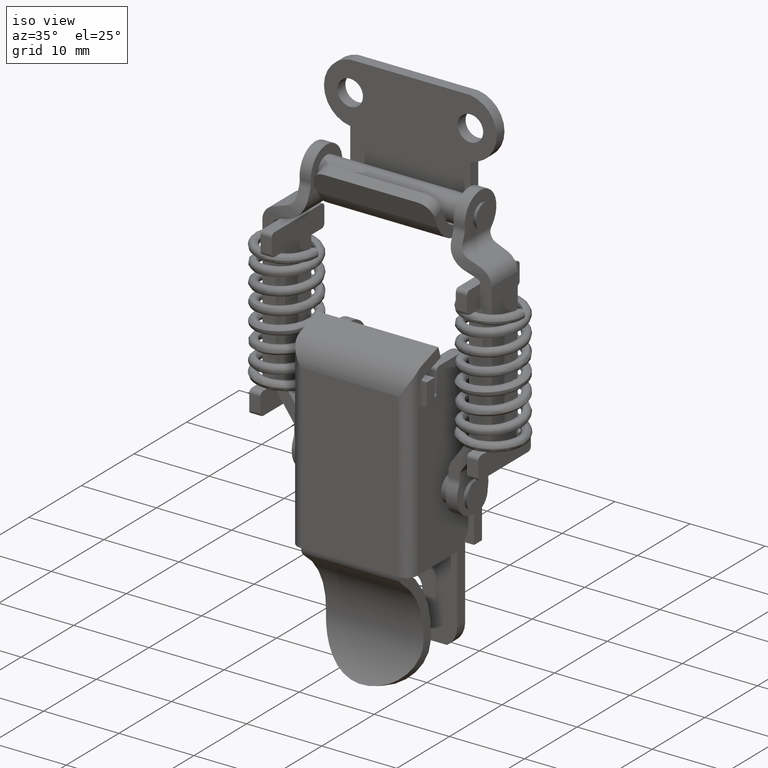
[diagram: clean part render]
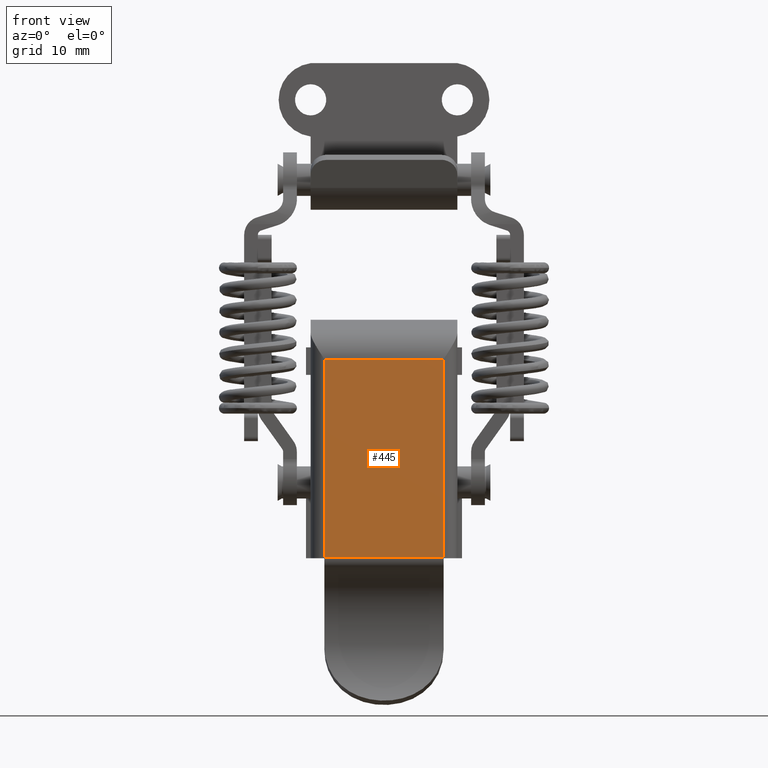
[diagram: tour spotlight — one face highlighted and labeled with its STEP entity id]
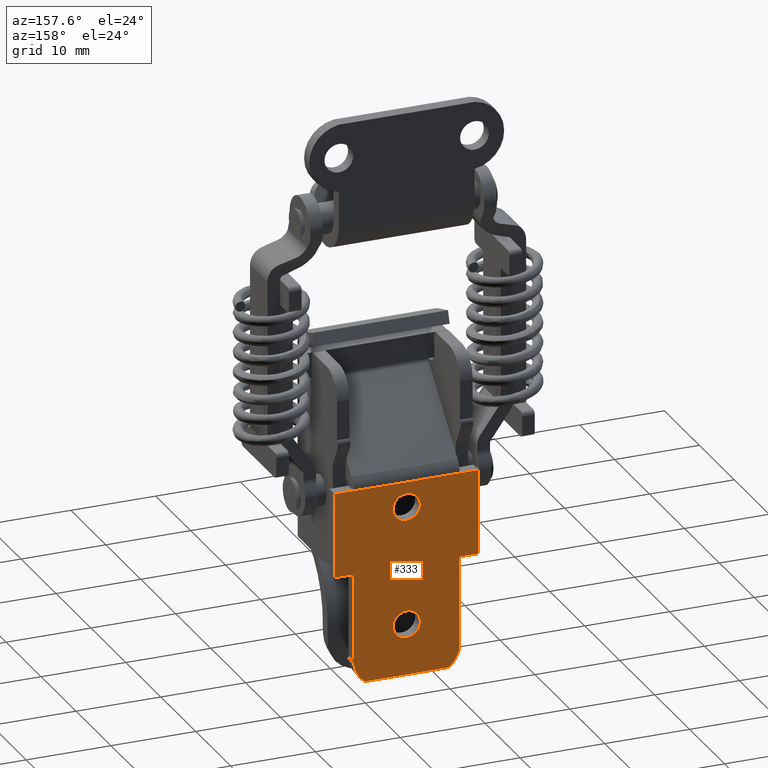
[diagram: tour spotlight — one face highlighted and labeled with its STEP entity id]
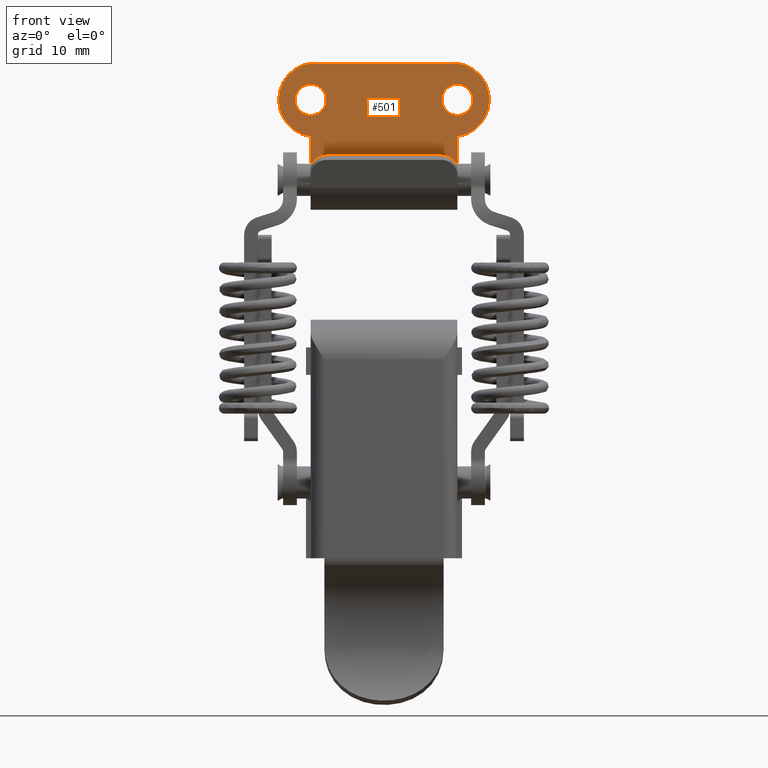
[diagram: tour spotlight — one face highlighted and labeled with its STEP entity id]
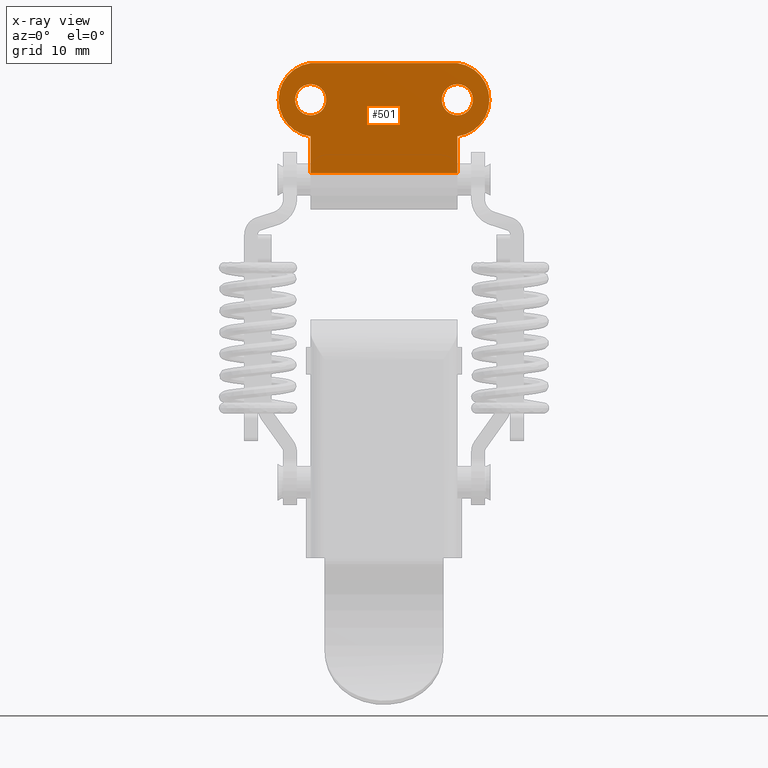
[diagram: x-ray of the same camera — body ghosted, this tour face saturated]
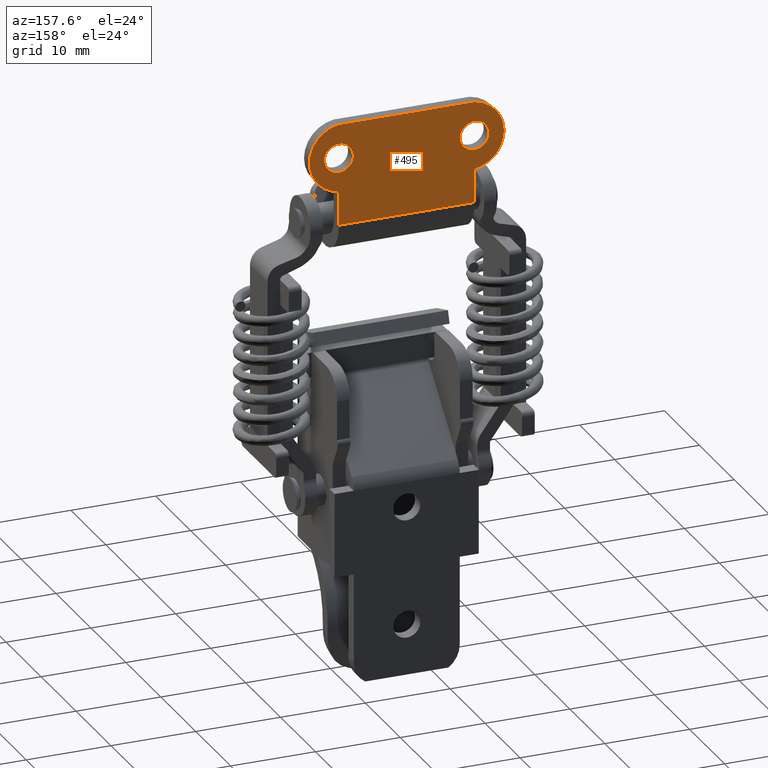
[diagram: tour spotlight — one face highlighted and labeled with its STEP entity id]
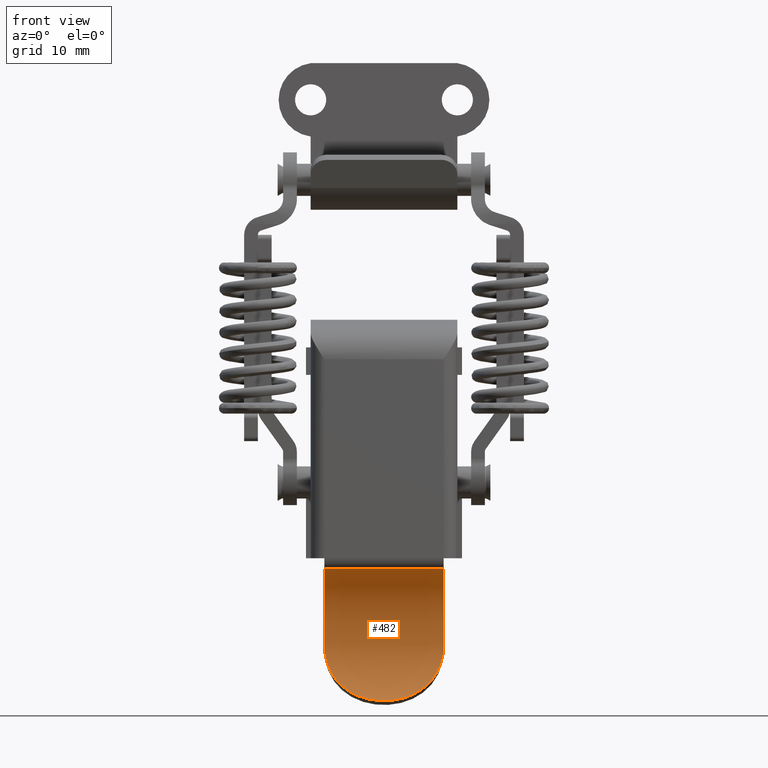
[diagram: tour spotlight — one face highlighted and labeled with its STEP entity id]
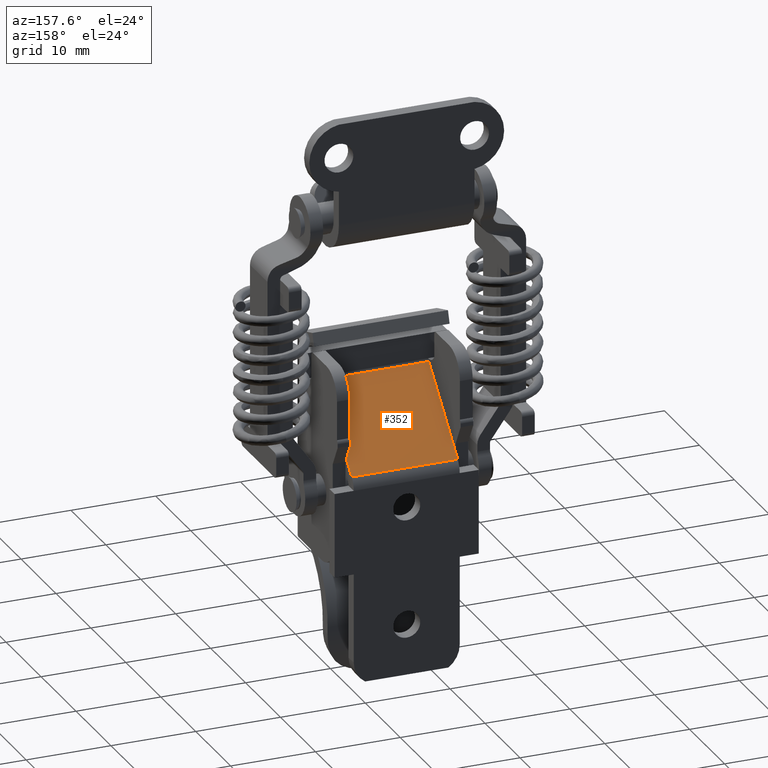
[diagram: tour spotlight — one face highlighted and labeled with its STEP entity id]
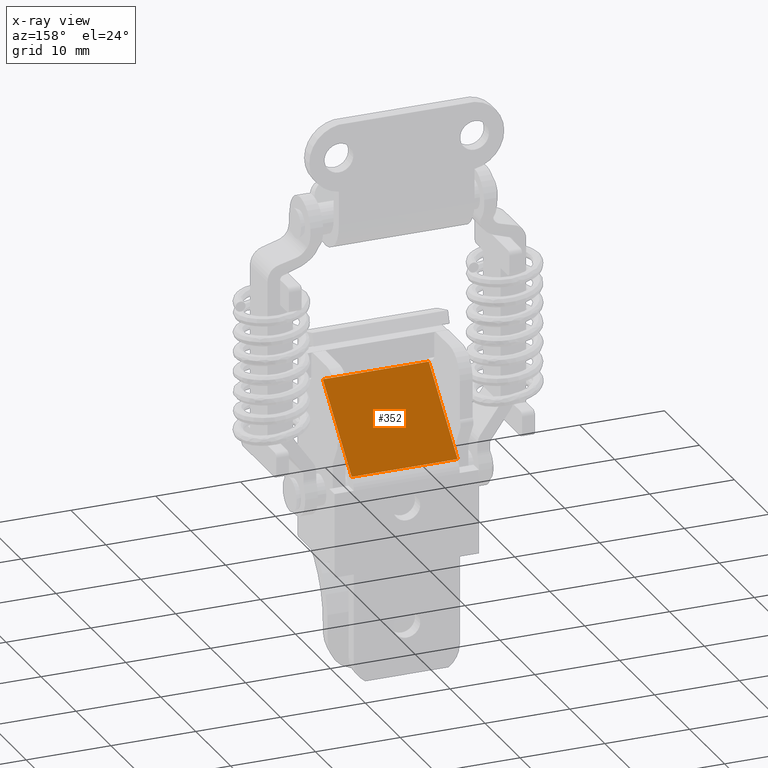
[diagram: x-ray of the same camera — body ghosted, this tour face saturated]
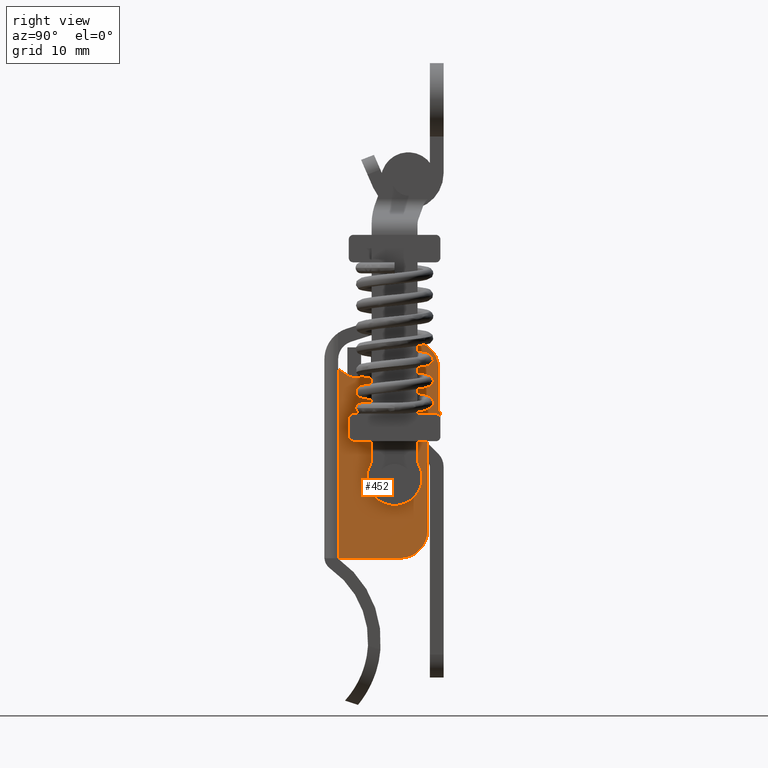
[diagram: tour spotlight — one face highlighted and labeled with its STEP entity id]
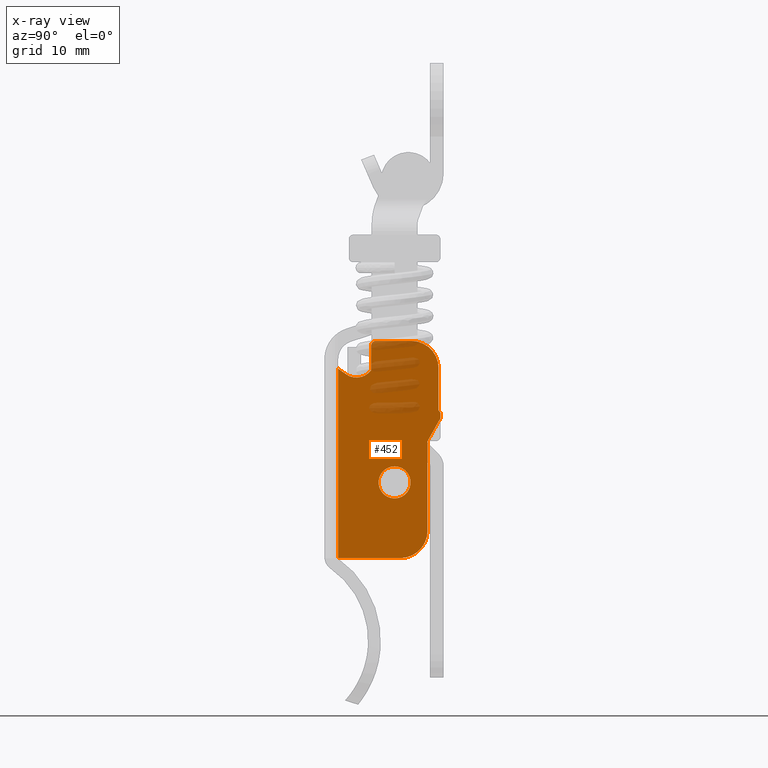
[diagram: x-ray of the same camera — body ghosted, this tour face saturated]
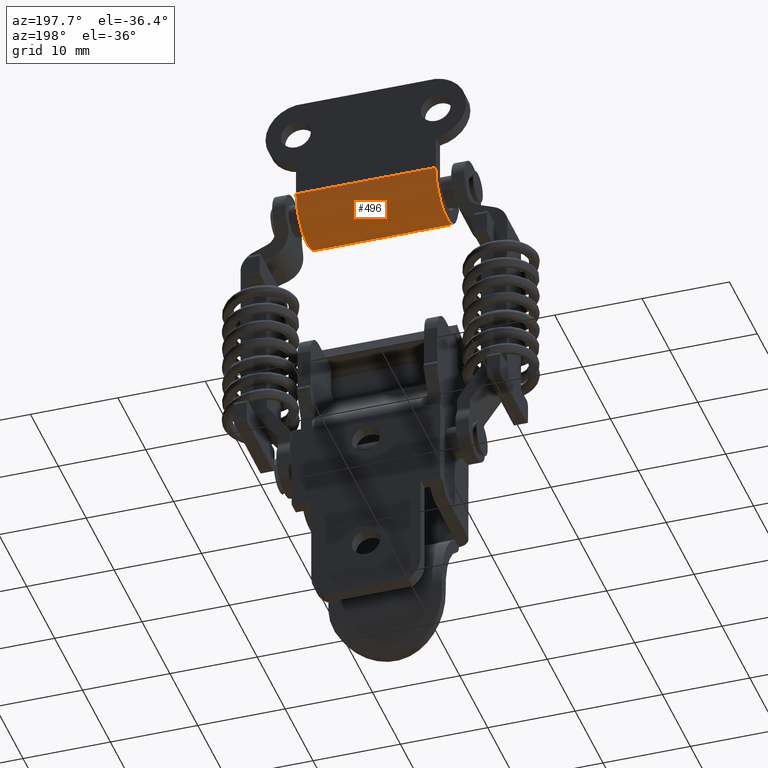
[diagram: tour spotlight — one face highlighted and labeled with its STEP entity id]
A machine part: a face-by-face anatomy tour. The part has 254 B-rep faces; the first image is the clean iso view, then the 8 largest visible faces are spotlighted one at a time (largest first), each with its STEP entity span.

Face 1 — front view, entity #445. In plain terms, the highlighted planar face has unit normal (0, -1, 0).
Definition (entity closure, byte-faithful):
#445=ADVANCED_FACE('',(#2282),#2281,.T.);
#2281=PLANE('',#6200);
#2282=FACE_OUTER_BOUND('',#6201,.T.);
#6197=CARTESIAN_POINT('',(-7.80000000000E+00,0.00000000000E+00,2.38548486112E+01));
#6198=DIRECTION('',(0.00000000000E+00,-1.00000000000E+00,0.00000000000E+00));
#6199=DIRECTION('',(0.00000000000E+00,0.00000000000E+00,-1.00000000000E+00));
#6200=AXIS2_PLACEMENT_3D('',#6197,#6198,#6199);
#6201=EDGE_LOOP('',(#7466,#7467,#7468,#7469));
#7466=ORIENTED_EDGE('',*,*,#8280,.T.);
#7467=ORIENTED_EDGE('',*,*,#8298,.T.);
#7468=ORIENTED_EDGE('',*,*,#8293,.T.);
#7469=ORIENTED_EDGE('',*,*,#8289,.T.);
#8280=EDGE_CURVE('',#11549,#11542,#11550,.T.);
#8289=EDGE_CURVE('',#11611,#11549,#11612,.T.);
#8293=EDGE_CURVE('',#11638,#11611,#11639,.T.);
#8298=EDGE_CURVE('',#11542,#11638,#11672,.T.);
#11542=VERTEX_POINT('',#15130);
#11549=VERTEX_POINT('',#15134);
#11550=LINE('',#15135,#15136);
#11611=VERTEX_POINT('',#15172);
#11612=LINE('',#15173,#15174);
#11638=VERTEX_POINT('',#15196);
#11639=LINE('',#15197,#15198);
#11672=LINE('',#15226,#15227);
#15130=CARTESIAN_POINT('',(6.50000000000E+00,0.00000000000E+00,9.81426582936E-02));
#15134=CARTESIAN_POINT('',(-6.50000000000E+00,0.00000000000E+00,9.81426582936E-02));
#15135=CARTESIAN_POINT('',(-6.50000000000E+00,0.00000000000E+00,9.81426582936E-02));
#15136=VECTOR('',#15137,1.30000000000E+01);
#15137=DIRECTION('',(1.00000000000E+00,0.00000000000E+00,0.00000000000E+00));
#15172=CARTESIAN_POINT('',(-6.50000000000E+00,0.00000000000E+00,2.16951480700E+01));
#15173=CARTESIAN_POINT('',(-6.50000000000E+00,0.00000000000E+00,2.16951480700E+01));
#15174=VECTOR('',#15175,2.15970054117E+01);
#15175=DIRECTION('',(0.00000000000E+00,0.00000000000E+00,-1.00000000000E+00));
#15196=CARTESIAN_POINT('',(6.50000000000E+00,0.00000000000E+00,2.16951480700E+01));
#15197=CARTESIAN_POINT('',(6.50000000000E+00,0.00000000000E+00,2.16951480700E+01));
#15198=VECTOR('',#15199,1.30000000000E+01);
#15199=DIRECTION('',(-1.00000000000E+00,0.00000000000E+00,0.00000000000E+00));
#15226=CARTESIAN_POINT('',(6.50000000000E+00,0.00000000000E+00,9.81426582936E-02));
#15227=VECTOR('',#15228,2.15970054117E+01);
#15228=DIRECTION('',(0.00000000000E+00,0.00000000000E+00,1.00000000000E+00));

Face 2 — auxiliary view, entity #333. In plain terms, the highlighted planar face has unit normal (0, 1, 0).
Definition (entity closure, byte-faithful):
#333=ADVANCED_FACE('',(#1154,#1155,#1156),#1153,.T.);
#1153=PLANE('',#3280);
#1154=FACE_OUTER_BOUND('',#3281,.T.);
#1155=FACE_BOUND('',#3282,.T.);
#1156=FACE_BOUND('',#3283,.T.);
#3277=CARTESIAN_POINT('',(-3.95000000000E+00,1.50000000000E+00,-2.29839975710E+00));
#3278=DIRECTION('',(0.00000000000E+00,1.00000000000E+00,0.00000000000E+00));
#3279=DIRECTION('',(0.00000000000E+00,0.00000000000E+00,1.00000000000E+00));
#3280=AXIS2_PLACEMENT_3D('',#3277,#3278,#3279);
#3281=EDGE_LOOP('',(#6853,#6854,#6855,#6856,#6857,#6858,#6859,#6860,#6861,#6862,#6863,#6864));
#3282=EDGE_LOOP('',(#6865,#6866));
#3283=EDGE_LOOP('',(#6867,#6868));
#6853=ORIENTED_EDGE('',*,*,#7992,.T.);
#6854=ORIENTED_EDGE('',*,*,#7993,.T.);
#6855=ORIENTED_EDGE('',*,*,#7981,.F.);
#6856=ORIENTED_EDGE('',*,*,#7969,.F.);
#6857=ORIENTED_EDGE('',*,*,#7994,.F.);
#6858=ORIENTED_EDGE('',*,*,#7995,.T.);
#6859=ORIENTED_EDGE('',*,*,#7996,.T.);
#6860=ORIENTED_EDGE('',*,*,#7976,.T.);
#6861=ORIENTED_EDGE('',*,*,#7997,.T.);
#6862=ORIENTED_EDGE('',*,*,#7998,.T.);
#6863=ORIENTED_EDGE('',*,*,#7999,.T.);
#6864=ORIENTED_EDGE('',*,*,#7977,.F.);
#6865=ORIENTED_EDGE('',*,*,#8000,.T.);
#6866=ORIENTED_EDGE('',*,*,#8001,.T.);
#6867=ORIENTED_EDGE('',*,*,#8002,.T.);
#6868=ORIENTED_EDGE('',*,*,#8003,.T.);
#7969=EDGE_CURVE('',#9475,#9476,#9477,.T.);
#7976=EDGE_CURVE('',#9503,#9518,#9525,.T.);
#7977=EDGE_CURVE('',#9531,#9532,#9533,.T.);
#7981=EDGE_CURVE('',#9476,#9559,#9560,.T.);
#7992=EDGE_CURVE('',#9531,#9635,#9636,.T.);
#7993=EDGE_CURVE('',#9635,#9559,#9642,.T.);
#7994=EDGE_CURVE('',#9648,#9475,#9649,.T.);
#7995=EDGE_CURVE('',#9648,#9655,#9656,.T.);
#7996=EDGE_CURVE('',#9655,#9503,#9662,.T.);
#7997=EDGE_CURVE('',#9518,#9668,#9669,.T.);
#7998=EDGE_CURVE('',#9668,#9675,#9676,.T.);
#7999=EDGE_CURVE('',#9675,#9532,#9682,.T.);
#8000=EDGE_CURVE('',#9688,#9689,#9690,.T.);
#8001=EDGE_CURVE('',#9689,#9688,#9696,.T.);
#8002=EDGE_CURVE('',#9702,#9703,#9704,.T.);
#8003=EDGE_CURVE('',#9703,#9702,#9710,.T.);
#9475=VERTEX_POINT('',#13367);
#9476=VERTEX_POINT('',#13368);
#9477=LINE('',#13369,#13370);
#9503=VERTEX_POINT('',#13383);
#9518=VERTEX_POINT('',#13392);
#9525=LINE('',#13396,#13397);
#9531=VERTEX_POINT('',#13399);
#9532=VERTEX_POINT('',#13400);
#9533=LINE('',#13401,#13402);
#9559=VERTEX_POINT('',#13415);
#9560=CIRCLE('',#13419,3.00000000000E+00);
#9635=VERTEX_POINT('',#13460);
#9636=LINE('',#13461,#13462);
#9642=LINE('',#13464,#13465);
#9648=VERTEX_POINT('',#13467);
#9649=CIRCLE('',#13471,3.00000000000E+00);
#9655=VERTEX_POINT('',#13472);
#9656=LINE('',#13473,#13474);
#9662=LINE('',#13476,#13477);
#9668=VERTEX_POINT('',#13479);
#9669=LINE('',#13480,#13481);
#9675=VERTEX_POINT('',#13483);
#9676=LINE('',#13484,#13485);
#9682=LINE('',#13487,#13488);
#9688=VERTEX_POINT('',#13490);
#9689=VERTEX_POINT('',#13491);
#9690=CIRCLE('',#13495,1.60000000000E+00);
#9696=CIRCLE('',#13499,1.60000000000E+00);
#9702=VERTEX_POINT('',#13500);
#9703=VERTEX_POINT('',#13501);
#9704=CIRCLE('',#13505,1.60000000000E+00);
#9710=CIRCLE('',#13509,1.60000000000E+00);
#13367=CARTESIAN_POINT('',(1.34168760482E+00,1.50000000000E+00,0.00000000000E+00));
#13368=CARTESIAN_POINT('',(1.11583123952E+01,1.50000000000E+00,0.00000000000E+00));
#13369=CARTESIAN_POINT('',(1.34168760482E+00,1.50000000000E+00,0.00000000000E+00));
#13370=VECTOR('',#13371,9.81662479036E+00);
#13371=DIRECTION('',(1.00000000000E+00,0.00000000000E+00,0.00000000000E+00));
#13383=CARTESIAN_POINT('',(-2.25000000000E+00,1.50000000000E+00,1.30000000000E+01));
#13392=CARTESIAN_POINT('',(-2.25000000000E+00,1.50000000000E+00,2.29839975710E+01));
#13396=CARTESIAN_POINT('',(-2.25000000000E+00,1.50000000000E+00,1.30000000000E+01));
#13397=VECTOR('',#13398,9.98399757100E+00);
#13398=DIRECTION('',(0.00000000000E+00,0.00000000000E+00,1.00000000000E+00));
#13399=CARTESIAN_POINT('',(1.47500000000E+01,1.50000000000E+00,1.30000000000E+01));
#13400=CARTESIAN_POINT('',(1.47500000000E+01,1.50000000000E+00,2.29839975710E+01));
#13401=CARTESIAN_POINT('',(1.47500000000E+01,1.50000000000E+00,1.30000000000E+01));
#13402=VECTOR('',#13403,9.98399757100E+00);
#13403=DIRECTION('',(0.00000000000E+00,0.00000000000E+00,1.00000000000E+00));
#13415=CARTESIAN_POINT('',(1.25000000000E+01,1.50000000000E+00,2.50000000000E+00));
#13416=CARTESIAN_POINT('',(9.50000000000E+00,1.50000000000E+00,2.50000000000E+00));
#13417=DIRECTION('',(0.00000000000E+00,-1.00000000000E+00,0.00000000000E+00));
#13418=DIRECTION('',(-0.00000000000E+00,-0.00000000000E+00,-1.00000000000E+00));
#13419=AXIS2_PLACEMENT_3D('',#13416,#13417,#13418);
#13460=CARTESIAN_POINT('',(1.25000000000E+01,1.50000000000E+00,1.30000000000E+01));
#13461=CARTESIAN_POINT('',(1.47500000000E+01,1.50000000000E+00,1.30000000000E+01));
#13462=VECTOR('',#13463,2.25000000000E+00);
#13463=DIRECTION('',(-1.00000000000E+00,0.00000000000E+00,0.00000000000E+00));
#13464=CARTESIAN_POINT('',(1.25000000000E+01,1.50000000000E+00,1.30000000000E+01));
#13465=VECTOR('',#13466,1.05000000000E+01);
#13466=DIRECTION('',(0.00000000000E+00,0.00000000000E+00,-1.00000000000E+00));
#13467=CARTESIAN_POINT('',(8.88178419700E-16,1.50000000000E+00,2.50000000000E+00));
#13468=CARTESIAN_POINT('',(3.00000000000E+00,1.50000000000E+00,2.50000000000E+00));
#13469=DIRECTION('',(0.00000000000E+00,-1.00000000000E+00,0.00000000000E+00));
#13470=DIRECTION('',(-0.00000000000E+00,-0.00000000000E+00,-1.00000000000E+00));
#13471=AXIS2_PLACEMENT_3D('',#13468,#13469,#13470);
#13472=CARTESIAN_POINT('',(0.00000000000E+00,1.50000000000E+00,1.30000000000E+01));
#13473=CARTESIAN_POINT('',(0.00000000000E+00,1.50000000000E+00,2.50000000000E+00));
#13474=VECTOR('',#13475,1.05000000000E+01);
#13475=DIRECTION('',(0.00000000000E+00,0.00000000000E+00,1.00000000000E+00));
#13476=CARTESIAN_POINT('',(0.00000000000E+00,1.50000000000E+00,1.30000000000E+01));
#13477=VECTOR('',#13478,2.25000000000E+00);
#13478=DIRECTION('',(-1.00000000000E+00,0.00000000000E+00,0.00000000000E+00));
#13479=CARTESIAN_POINT('',(0.00000000000E+00,1.50000000000E+00,2.29839975710E+01));
#13480=CARTESIAN_POINT('',(-2.25000000000E+00,1.50000000000E+00,2.29839975709E+01));
#13481=VECTOR('',#13482,2.25000000000E+00);
#13482=DIRECTION('',(1.00000000000E+00,0.00000000000E+00,0.00000000000E+00));
#13483=CARTESIAN_POINT('',(1.25000000000E+01,1.50000000000E+00,2.29839975710E+01));
#13484=CARTESIAN_POINT('',(0.00000000000E+00,1.50000000000E+00,2.29839975709E+01));
#13485=VECTOR('',#13486,1.25000000000E+01);
#13486=DIRECTION('',(1.00000000000E+00,0.00000000000E+00,0.00000000000E+00));
#13487=CARTESIAN_POINT('',(1.25000000000E+01,1.50000000000E+00,2.29839975710E+01));
#13488=VECTOR('',#13489,2.25000000000E+00);
#13489=DIRECTION('',(1.00000000000E+00,0.00000000000E+00,0.00000000000E+00));
#13490=CARTESIAN_POINT('',(6.25000000000E+00,1.50000000000E+00,2.16000000000E+01));
#13491=CARTESIAN_POINT('',(6.25000000000E+00,1.50000000000E+00,1.84000000000E+01));
#13492=CARTESIAN_POINT('',(6.25000000000E+00,1.50000000000E+00,2.00000000000E+01));
#13493=DIRECTION('',(-0.00000000000E+00,-1.00000000000E+00,0.00000000000E+00));
#13494=DIRECTION('',(-1.22460635382E-16,0.00000000000E+00,1.00000000000E+00));
#13495=AXIS2_PLACEMENT_3D('',#13492,#13493,#13494);
#13496=CARTESIAN_POINT('',(6.25000000000E+00,1.50000000000E+00,2.00000000000E+01));
#13497=DIRECTION('',(-0.00000000000E+00,-1.00000000000E+00,0.00000000000E+00));
#13498=DIRECTION('',(-1.22460635382E-16,0.00000000000E+00,1.00000000000E+00));
#13499=AXIS2_PLACEMENT_3D('',#13496,#13497,#13498);
#13500=CARTESIAN_POINT('',(6.25000000000E+00,1.50000000000E+00,7.60000000000E+00));
#13501=CARTESIAN_POINT('',(6.25000000000E+00,1.50000000000E+00,4.40000000000E+00));
#13502=CARTESIAN_POINT('',(6.25000000000E+00,1.50000000000E+00,6.00000000000E+00));
#13503=DIRECTION('',(-0.00000000000E+00,-1.00000000000E+00,0.00000000000E+00));
#13504=DIRECTION('',(-1.22460635382E-16,0.00000000000E+00,1.00000000000E+00));
#13505=AXIS2_PLACEMENT_3D('',#13502,#13503,#13504);
#13506=CARTESIAN_POINT('',(6.25000000000E+00,1.50000000000E+00,6.00000000000E+00));
#13507=DIRECTION('',(-0.00000000000E+00,-1.00000000000E+00,0.00000000000E+00));
#13508=DIRECTION('',(-1.22460635382E-16,0.00000000000E+00,1.00000000000E+00));
#13509=AXIS2_PLACEMENT_3D('',#13506,#13507,#13508);

Face 3 — front view, entity #501. An x-ray twin of the same camera follows (body ghosted, this face saturated) — the face is partly hidden behind the body. In plain terms, the highlighted planar face has unit normal (0, -1, 0).
Definition (entity closure, byte-faithful):
#501=ADVANCED_FACE('',(#2848,#2849,#2850),#2847,.T.);
#2847=PLANE('',#6486);
#2848=FACE_OUTER_BOUND('',#6487,.T.);
#2849=FACE_BOUND('',#6488,.T.);
#2850=FACE_BOUND('',#6489,.T.);
#6483=CARTESIAN_POINT('',(0.00000000000E+00,-5.79072449009E+00,1.20000000000E+00));
#6484=DIRECTION('',(1.00000000000E+00,0.00000000000E+00,0.00000000000E+00));
#6485=DIRECTION('',(0.00000000000E+00,0.00000000000E+00,-1.00000000000E+00));
#6486=AXIS2_PLACEMENT_3D('',#6483,#6484,#6485);
#6487=EDGE_LOOP('',(#7779,#7780,#7781,#7782,#7783,#7784));
#6488=EDGE_LOOP('',(#7785,#7786));
#6489=EDGE_LOOP('',(#7787,#7788));
#7779=ORIENTED_EDGE('',*,*,#8428,.T.);
#7780=ORIENTED_EDGE('',*,*,#8450,.T.);
#7781=ORIENTED_EDGE('',*,*,#8451,.T.);
#7782=ORIENTED_EDGE('',*,*,#8452,.T.);
#7783=ORIENTED_EDGE('',*,*,#8433,.F.);
#7784=ORIENTED_EDGE('',*,*,#8449,.F.);
#7785=ORIENTED_EDGE('',*,*,#8453,.F.);
#7786=ORIENTED_EDGE('',*,*,#8454,.F.);
#7787=ORIENTED_EDGE('',*,*,#8455,.F.);
#7788=ORIENTED_EDGE('',*,*,#8456,.F.);
#8428=EDGE_CURVE('',#12536,#12529,#12537,.T.);
#8433=EDGE_CURVE('',#12563,#12570,#12571,.T.);
#8449=EDGE_CURVE('',#12536,#12563,#12675,.T.);
#8450=EDGE_CURVE('',#12529,#12681,#12682,.T.);
#8451=EDGE_CURVE('',#12681,#12688,#12689,.T.);
#8452=EDGE_CURVE('',#12688,#12570,#12695,.T.);
#8453=EDGE_CURVE('',#12701,#12702,#12703,.T.);
#8454=EDGE_CURVE('',#12702,#12701,#12709,.T.);
#8455=EDGE_CURVE('',#12715,#12716,#12717,.T.);
#8456=EDGE_CURVE('',#12716,#12715,#12723,.T.);
#12529=VERTEX_POINT('',#15728);
#12536=VERTEX_POINT('',#15732);
#12537=LINE('',#15733,#15734);
#12563=VERTEX_POINT('',#15748);
#12570=VERTEX_POINT('',#15753);
#12571=LINE('',#15754,#15755);
#12675=LINE('',#15817,#15818);
#12681=VERTEX_POINT('',#15820);
#12682=CIRCLE('',#15824,4.03690855919E+00);
#12688=VERTEX_POINT('',#15825);
#12689=LINE('',#15826,#15827);
#12695=CIRCLE('',#15832,4.03690855919E+00);
#12701=VERTEX_POINT('',#15833);
#12702=VERTEX_POINT('',#15834);
#12703=CIRCLE('',#15838,1.70000000000E+00);
#12709=CIRCLE('',#15842,1.70000000000E+00);
#12715=VERTEX_POINT('',#15843);
#12716=VERTEX_POINT('',#15844);
#12717=CIRCLE('',#15848,1.70000000000E+00);
#12723=CIRCLE('',#15852,1.70000000000E+00);
#15728=CARTESIAN_POINT('',(0.00000000000E+00,1.60000000000E+01,-8.00000000000E+00));
#15732=CARTESIAN_POINT('',(-4.44089209850E-16,1.60000000000E+01,-1.20000000000E+01));
#15733=CARTESIAN_POINT('',(0.00000000000E+00,1.60000000000E+01,-1.20000000000E+01));
#15734=VECTOR('',#15735,4.00000000000E+00);
#15735=DIRECTION('',(0.00000000000E+00,0.00000000000E+00,1.00000000000E+00));
#15748=CARTESIAN_POINT('',(-4.44089209850E-16,2.22044604925E-13,-1.20000000000E+01));
#15753=CARTESIAN_POINT('',(0.00000000000E+00,2.27373675443E-13,-8.00000000000E+00));
#15754=CARTESIAN_POINT('',(0.00000000000E+00,2.27373675443E-13,-1.20000000000E+01));
#15755=VECTOR('',#15756,4.00000000000E+00);
#15756=DIRECTION('',(0.00000000000E+00,0.00000000000E+00,1.00000000000E+00));
#15817=CARTESIAN_POINT('',(-4.44089209850E-16,1.60000000000E+01,-1.20000000000E+01));
#15818=VECTOR('',#15819,1.60000000000E+01);
#15819=DIRECTION('',(0.00000000000E+00,-1.00000000000E+00,0.00000000000E+00));
#15820=CARTESIAN_POINT('',(0.00000000000E+00,1.60000000000E+01,2.66453525910E-14));
#15821=CARTESIAN_POINT('',(0.00000000000E+00,1.54553618492E+01,-4.00000000000E+00));
#15822=DIRECTION('',(1.00000000000E+00,0.00000000000E+00,0.00000000000E+00));
#15823=DIRECTION('',(-0.00000000000E+00,-0.00000000000E+00,1.00000000000E+00));
#15824=AXIS2_PLACEMENT_3D('',#15821,#15822,#15823);
#15825=CARTESIAN_POINT('',(0.00000000000E+00,2.22044604925E-13,0.00000000000E+00));
#15826=CARTESIAN_POINT('',(0.00000000000E+00,1.60000000000E+01,0.00000000000E+00));
#15827=VECTOR('',#15828,1.60000000000E+01);
#15828=DIRECTION('',(0.00000000000E+00,-1.00000000000E+00,0.00000000000E+00));
#15829=CARTESIAN_POINT('',(0.00000000000E+00,5.44638150786E-01,-4.00000000000E+00));
#15830=DIRECTION('',(1.00000000000E+00,0.00000000000E+00,0.00000000000E+00));
#15831=DIRECTION('',(-0.00000000000E+00,-0.00000000000E+00,1.00000000000E+00));
#15832=AXIS2_PLACEMENT_3D('',#15829,#15830,#15831);
#15833=CARTESIAN_POINT('',(0.00000000000E+00,-2.79950877295E-11,-5.70000000000E+00));
#15834=CARTESIAN_POINT('',(0.00000000000E+00,-2.79953837889E-11,-2.30000000000E+00));
#15835=CARTESIAN_POINT('',(0.00000000000E+00,-2.79953837889E-11,-4.00000000000E+00));
#15836=DIRECTION('',(1.00000000000E+00,0.00000000000E+00,-0.00000000000E+00));
#15837=DIRECTION('',(0.00000000000E+00,-1.22460635382E-16,1.00000000000E+00));
#15838=AXIS2_PLACEMENT_3D('',#15835,#15836,#15837);
#15839=CARTESIAN_POINT('',(0.00000000000E+00,-2.79953837889E-11,-4.00000000000E+00));
#15840=DIRECTION('',(1.00000000000E+00,0.00000000000E+00,-0.00000000000E+00));
#15841=DIRECTION('',(0.00000000000E+00,-1.22460635382E-16,1.00000000000E+00));
#15842=AXIS2_PLACEMENT_3D('',#15839,#15840,#15841);
#15843=CARTESIAN_POINT('',(0.00000000000E+00,1.60000000000E+01,-5.70000000000E+00));
#15844=CARTESIAN_POINT('',(0.00000000000E+00,1.60000000000E+01,-2.30000000000E+00));
#15845=CARTESIAN_POINT('',(0.00000000000E+00,1.60000000000E+01,-4.00000000000E+00));
#15846=DIRECTION('',(1.00000000000E+00,0.00000000000E+00,-0.00000000000E+00));
#15847=DIRECTION('',(0.00000000000E+00,-1.22460635382E-16,1.00000000000E+00));
#15848=AXIS2_PLACEMENT_3D('',#15845,#15846,#15847);
#15849=CARTESIAN_POINT('',(0.00000000000E+00,1.60000000000E+01,-4.00000000000E+00));
#15850=DIRECTION('',(1.00000000000E+00,0.00000000000E+00,-0.00000000000E+00));
#15851=DIRECTION('',(0.00000000000E+00,-1.22460635382E-16,1.00000000000E+00));
#15852=AXIS2_PLACEMENT_3D('',#15849,#15850,#15851);

Face 4 — auxiliary view, entity #495. In plain terms, the highlighted planar face has unit normal (0, 1, 0).
Definition (entity closure, byte-faithful):
#495=ADVANCED_FACE('',(#2786,#2787,#2788),#2785,.T.);
#2785=PLANE('',#6454);
#2786=FACE_OUTER_BOUND('',#6455,.T.);
#2787=FACE_BOUND('',#6456,.T.);
#2788=FACE_BOUND('',#6457,.T.);
#6451=CARTESIAN_POINT('',(-1.50000000000E+00,-5.79072449009E+00,-1.32000000000E+01));
#6452=DIRECTION('',(-1.00000000000E+00,0.00000000000E+00,0.00000000000E+00));
#6453=DIRECTION('',(0.00000000000E+00,0.00000000000E+00,1.00000000000E+00));
#6454=AXIS2_PLACEMENT_3D('',#6451,#6452,#6453);
#6455=EDGE_LOOP('',(#7745,#7746,#7747,#7748,#7749,#7750));
#6456=EDGE_LOOP('',(#7751,#7752));
#6457=EDGE_LOOP('',(#7753,#7754));
#7745=ORIENTED_EDGE('',*,*,#8435,.F.);
#7746=ORIENTED_EDGE('',*,*,#8437,.F.);
#7747=ORIENTED_EDGE('',*,*,#8438,.F.);
#7748=ORIENTED_EDGE('',*,*,#8439,.F.);
#7749=ORIENTED_EDGE('',*,*,#8426,.T.);
#7750=ORIENTED_EDGE('',*,*,#8440,.T.);
#7751=ORIENTED_EDGE('',*,*,#8441,.T.);
#7752=ORIENTED_EDGE('',*,*,#8442,.T.);
#7753=ORIENTED_EDGE('',*,*,#8443,.T.);
#7754=ORIENTED_EDGE('',*,*,#8444,.T.);
#8426=EDGE_CURVE('',#12522,#12515,#12523,.T.);
#8435=EDGE_CURVE('',#12577,#12584,#12585,.T.);
#8437=EDGE_CURVE('',#12597,#12577,#12598,.T.);
#8438=EDGE_CURVE('',#12604,#12597,#12605,.T.);
#8439=EDGE_CURVE('',#12522,#12604,#12611,.T.);
#8440=EDGE_CURVE('',#12515,#12584,#12617,.T.);
#8441=EDGE_CURVE('',#12623,#12624,#12625,.T.);
#8442=EDGE_CURVE('',#12624,#12623,#12631,.T.);
#8443=EDGE_CURVE('',#12637,#12638,#12639,.T.);
#8444=EDGE_CURVE('',#12638,#12637,#12645,.T.);
#12515=VERTEX_POINT('',#15719);
#12522=VERTEX_POINT('',#15724);
#12523=LINE('',#15725,#15726);
#12577=VERTEX_POINT('',#15757);
#12584=VERTEX_POINT('',#15761);
#12585=LINE('',#15762,#15763);
#12597=VERTEX_POINT('',#15769);
#12598=CIRCLE('',#15773,4.03690855919E+00);
#12604=VERTEX_POINT('',#15774);
#12605=LINE('',#15775,#15776);
#12611=CIRCLE('',#15781,4.03690855919E+00);
#12617=LINE('',#15782,#15783);
#12623=VERTEX_POINT('',#15785);
#12624=VERTEX_POINT('',#15786);
#12625=CIRCLE('',#15790,1.70000000000E+00);
#12631=CIRCLE('',#15794,1.70000000000E+00);
#12637=VERTEX_POINT('',#15795);
#12638=VERTEX_POINT('',#15796);
#12639=CIRCLE('',#15800,1.70000000000E+00);
#12645=CIRCLE('',#15804,1.70000000000E+00);
#15719=CARTESIAN_POINT('',(-1.50000000000E+00,1.60000000000E+01,-1.20000000000E+01));
#15724=CARTESIAN_POINT('',(-1.50000000000E+00,1.60000000000E+01,-8.00000000000E+00));
#15725=CARTESIAN_POINT('',(-1.50000000000E+00,1.60000000000E+01,-8.00000000000E+00));
#15726=VECTOR('',#15727,4.00000000000E+00);
#15727=DIRECTION('',(0.00000000000E+00,0.00000000000E+00,-1.00000000000E+00));
#15757=CARTESIAN_POINT('',(-1.50000000000E+00,2.01505478969E-13,-8.00000000000E+00));
#15761=CARTESIAN_POINT('',(-1.50000000000E+00,2.22044604925E-13,-1.20000000000E+01));
#15762=CARTESIAN_POINT('',(-1.50000000000E+00,2.27373675443E-13,-8.00000000000E+00));
#15763=VECTOR('',#15764,4.00000000000E+00);
#15764=DIRECTION('',(0.00000000000E+00,0.00000000000E+00,-1.00000000000E+00));
#15769=CARTESIAN_POINT('',(-1.50000000000E+00,2.22044604925E-13,-1.42108547152E-14));
#15770=CARTESIAN_POINT('',(-1.50000000000E+00,5.44638150786E-01,-4.00000000000E+00));
#15771=DIRECTION('',(1.00000000000E+00,0.00000000000E+00,0.00000000000E+00));
#15772=DIRECTION('',(-0.00000000000E+00,-0.00000000000E+00,1.00000000000E+00));
#15773=AXIS2_PLACEMENT_3D('',#15770,#15771,#15772);
#15774=CARTESIAN_POINT('',(-1.50000000000E+00,1.60000000000E+01,2.66453525910E-14));
#15775=CARTESIAN_POINT('',(-1.50000000000E+00,1.60000000000E+01,-1.42108547152E-14));
#15776=VECTOR('',#15777,1.60000000000E+01);
#15777=DIRECTION('',(0.00000000000E+00,-1.00000000000E+00,0.00000000000E+00));
#15778=CARTESIAN_POINT('',(-1.50000000000E+00,1.54553618492E+01,-4.00000000000E+00));
#15779=DIRECTION('',(1.00000000000E+00,0.00000000000E+00,0.00000000000E+00));
#15780=DIRECTION('',(-0.00000000000E+00,-0.00000000000E+00,1.00000000000E+00));
#15781=AXIS2_PLACEMENT_3D('',#15778,#15779,#15780);
#15782=CARTESIAN_POINT('',(-1.50000000000E+00,1.60000000000E+01,-1.20000000000E+01));
#15783=VECTOR('',#15784,1.60000000000E+01);
#15784=DIRECTION('',(0.00000000000E+00,-1.00000000000E+00,0.00000000000E+00));
#15785=CARTESIAN_POINT('',(-1.50000000000E+00,-2.79953837889E-11,-2.30000000000E+00));
#15786=CARTESIAN_POINT('',(-1.50000000000E+00,-2.79950877295E-11,-5.70000000000E+00));
#15787=CARTESIAN_POINT('',(-1.50000000000E+00,-2.79953837889E-11,-4.00000000000E+00));
#15788=DIRECTION('',(1.00000000000E+00,0.00000000000E+00,-0.00000000000E+00));
#15789=DIRECTION('',(0.00000000000E+00,-1.22460635382E-16,1.00000000000E+00));
#15790=AXIS2_PLACEMENT_3D('',#15787,#15788,#15789);
#15791=CARTESIAN_POINT('',(-1.50000000000E+00,-2.79953837889E-11,-4.00000000000E+00));
#15792=DIRECTION('',(1.00000000000E+00,0.00000000000E+00,-0.00000000000E+00));
#15793=DIRECTION('',(0.00000000000E+00,-1.22460635382E-16,1.00000000000E+00));
#15794=AXIS2_PLACEMENT_3D('',#15791,#15792,#15793);
#15795=CARTESIAN_POINT('',(-1.50000000000E+00,1.60000000000E+01,-2.30000000000E+00));
#15796=CARTESIAN_POINT('',(-1.50000000000E+00,1.60000000000E+01,-5.70000000000E+00));
#15797=CARTESIAN_POINT('',(-1.50000000000E+00,1.60000000000E+01,-4.00000000000E+00));
#15798=DIRECTION('',(1.00000000000E+00,0.00000000000E+00,-0.00000000000E+00));
#15799=DIRECTION('',(0.00000000000E+00,-1.22460635382E-16,1.00000000000E+00));
#15800=AXIS2_PLACEMENT_3D('',#15797,#15798,#15799);
#15801=CARTESIAN_POINT('',(-1.50000000000E+00,1.60000000000E+01,-4.00000000000E+00));
#15802=DIRECTION('',(1.00000000000E+00,0.00000000000E+00,-0.00000000000E+00));
#15803=DIRECTION('',(0.00000000000E+00,-1.22460635382E-16,1.00000000000E+00));
#15804=AXIS2_PLACEMENT_3D('',#15801,#15802,#15803);

Face 5 — front view, entity #482. In plain terms, the highlighted cylindrical surface (partial cylindrical patch) has radius 9.6106 mm, axis along (1, 0, 0).
Definition (entity closure, byte-faithful):
#482=ADVANCED_FACE('',(#2654),#2653,.F.);
#2653=CYLINDRICAL_SURFACE('',#6387,9.61062537653E+00);
#2654=FACE_OUTER_BOUND('',#6388,.T.);
#6384=CARTESIAN_POINT('',(9.93500000000E+02,-4.84349923548E+00,-9.02359038467E+00));
#6385=DIRECTION('',(1.00000000000E+00,-0.00000000000E+00,-0.00000000000E+00));
#6386=DIRECTION('',(-0.00000000000E+00,-0.00000000000E+00,-1.00000000000E+00));
#6387=AXIS2_PLACEMENT_3D('',#6384,#6385,#6386);
#6388=EDGE_LOOP('',(#7658,#7659,#7660,#7661));
#7658=ORIENTED_EDGE('',*,*,#8403,.F.);
#7659=ORIENTED_EDGE('',*,*,#8284,.T.);
#7660=ORIENTED_EDGE('',*,*,#8405,.T.);
#7661=ORIENTED_EDGE('',*,*,#8277,.T.);
#8277=EDGE_CURVE('',#11528,#11521,#11529,.T.);
#8284=EDGE_CURVE('',#11577,#11570,#11578,.T.);
#8403=EDGE_CURVE('',#11577,#11521,#12369,.T.);
#8405=EDGE_CURVE('',#11570,#11528,#12381,.T.);
#11521=VERTEX_POINT('',#15081);
#11528=VERTEX_POINT('',#15085);
#11529=(BOUNDED_CURVE() B_SPLINE_CURVE(3,(#15086,#15087,#15088,#15089,#15090,#15091,#15092,#15093,#15094,#15095,#15096,#15097,#15098,#15099,#15100,#15101,#15102,#15103,#15104,#15105,#15106,#15107,#15108,#15109,#15110,#15111,#15112,#15113,#15114,#15115,#15116,#15117,#15118,#15119,#15120,#15121,#15122,#15123,#15124,#15125),.UNSPECIFIED.,.F.,.F.) B_SPLINE_CURVE_WITH_KNOTS((4,2,2,2,2,2,2,2,2,2,2,2,2,2,2,2,2,2,2,4),(1.59226449306E-17,1.28113779067E-03,2.56227558134E-03,3.84341337200E-03,5.12455116267E-03,6.40568895334E-03,7.68682674401E-03,8.96796453467E-03,1.02491023253E-02,1.15302401160E-02,1.21708090113E-02,1.28113779067E-02,1.40925156973E-02,1.47330845927E-02,1.53736534880E-02,1.66547912787E-02,1.79359290693E-02,1.85764979647E-02,1.92170668600E-02,2.04982046507E-02),.UNSPECIFIED.) CURVE() GEOMETRIC_REPRESENTATION_ITEM() RATIONAL_B_SPLINE_CURVE((1.00000000000E+00,1.00000000000E+00,1.00000000000E+00,1.00000000000E+00,1.00000000000E+00,1.00000000000E+00,1.00000000000E+00,1.00000000000E+00,1.00000000000E+00,1.00000000000E+00,1.00000000000E+00,1.00000000000E+00,1.00000000000E+00,1.00000000000E+00,1.00000000000E+00,1.00000000000E+00,1.00000000000E+00,1.00000000000E+00,1.00000000000E+00,1.00000000000E+00,1.00000000000E+00,1.00000000000E+00,1.00000000000E+00,1.00000000000E+00,1.00000000000E+00,1.00000000000E+00,1.00000000000E+00,1.00000000000E+00,1.00000000000E+00,1.00000000000E+00,1.00000000000E+00,1.00000000000E+00,1.00000000000E+00,1.00000000000E+00,1.00000000000E+00,1.00000000000E+00,1.00000000000E+00,1.00000000000E+00,1.00000000000E+00,1.00000000000E+00)) REPRESENTATION_ITEM('') );
#11570=VERTEX_POINT('',#15146);
#11577=VERTEX_POINT('',#15151);
#11578=LINE('',#15152,#15153);
#12369=CIRCLE('',#15638,9.61062537653E+00);
#12381=CIRCLE('',#15646,9.61062537653E+00);
#15081=CARTESIAN_POINT('',(6.50000000000E+00,4.75432044701E+00,-9.51955154290E+00));
#15085=CARTESIAN_POINT('',(-6.50000000000E+00,4.75432044701E+00,-9.51955154290E+00));
#15086=CARTESIAN_POINT('',(-6.50000000000E+00,4.75432044701E+00,-9.51955154290E+00));
#15087=CARTESIAN_POINT('',(-6.50000000000E+00,4.73195912229E+00,-9.95228696771E+00));
#15088=CARTESIAN_POINT('',(-6.46001847659E+00,4.68089941324E+00,-1.03750218976E+01));
#15089=CARTESIAN_POINT('',(-6.29661157525E+00,4.52668543474E+00,-1.12007849097E+01));
#15090=CARTESIAN_POINT('',(-6.17090419669E+00,4.42194200552E+00,-1.16066187360E+01));
#15091=CARTESIAN_POINT('',(-5.84425415688E+00,4.17846735018E+00,-1.23589398089E+01));
#15092=CARTESIAN_POINT('',(-5.64186926801E+00,4.03838594615E+00,-1.27121773129E+01));
#15093=CARTESIAN_POINT('',(-5.16363768770E+00,3.73774819365E+00,-1.33659112464E+01));
#15094=CARTESIAN_POINT('',(-4.89380957476E+00,3.58090383603E+00,-1.36590683693E+01));
#15095=CARTESIAN_POINT('',(-4.29408602532E+00,3.26813606340E+00,-1.41868835233E+01));
#15096=CARTESIAN_POINT('',(-3.96218425825E+00,3.11167047901E+00,-1.44216997597E+01));
#15097=CARTESIAN_POINT('',(-3.26166280450E+00,2.82588697475E+00,-1.48205572786E+01));
#15098=CARTESIAN_POINT('',(-2.89035450712E+00,2.69489547361E+00,-1.49874533168E+01));
#15099=CARTESIAN_POINT('',(-2.10165300706E+00,2.47162934948E+00,-1.52592899965E+01));
#15100=CARTESIAN_POINT('',(-1.69314689256E+00,2.38230069966E+00,-1.53608012011E+01));
#15101=CARTESIAN_POINT('',(-8.58665162861E-01,2.26082454708E+00,-1.54966892737E+01));
#15102=CARTESIAN_POINT('',(-4.27453975248E-01,2.22829512135E+00,-1.55315735496E+01));
#15103=CARTESIAN_POINT('',(4.38807429323E-01,2.22885765720E+00,-1.55309622261E+01));
#15104=CARTESIAN_POINT('',(8.63568253915E-01,2.26131966128E+00,-1.54961498455E+01));
#15105=CARTESIAN_POINT('',(1.48904204941E+00,2.35270015238E+00,-1.53939062205E+01));
#15106=CARTESIAN_POINT('',(1.69557746034E+00,2.39027531324E+00,-1.53514029539E+01));
#15107=CARTESIAN_POINT('',(2.10475044383E+00,2.47872883646E+00,-1.52488359377E+01));
#15108=CARTESIAN_POINT('',(2.30681973343E+00,2.52956617266E+00,-1.51887908019E+01));
#15109=CARTESIAN_POINT('',(2.89413012005E+00,2.69625536944E+00,-1.49857123982E+01));
#15110=CARTESIAN_POINT('',(3.26520228550E+00,2.82713223571E+00,-1.48189744347E+01));
#15111=CARTESIAN_POINT('',(3.79286361770E+00,3.04269623313E+00,-1.45178853340E+01));
#15112=CARTESIAN_POINT('',(3.96457240075E+00,3.11813447945E+00,-1.44083757039E+01));
#15113=CARTESIAN_POINT('',(4.29182316406E+00,3.27085426134E+00,-1.41753659692E+01));
#15114=CARTESIAN_POINT('',(4.44803700228E+00,3.34836918958E+00,-1.40515831107E+01));
#15115=CARTESIAN_POINT('',(4.89508489624E+00,3.58168143799E+00,-1.36575570245E+01));
#15116=CARTESIAN_POINT('',(5.16468947223E+00,3.73835600140E+00,-1.33647888031E+01));
#15117=CARTESIAN_POINT('',(5.64377326584E+00,4.03963660572E+00,-1.27092573042E+01));
#15118=CARTESIAN_POINT('',(5.84413073530E+00,4.17841036795E+00,-1.23588610628E+01));
#15119=CARTESIAN_POINT('',(6.08811803541E+00,4.36021842850E+00,-1.17974671132E+01));
#15120=CARTESIAN_POINT('',(6.15995140280E+00,4.41642967907E+00,-1.16043357765E+01));
#15121=CARTESIAN_POINT('',(6.28414584830E+00,4.51848003357E+00,-1.12053040335E+01));
#15122=CARTESIAN_POINT('',(6.33645321420E+00,4.56432420027E+00,-1.09988161569E+01));
#15123=CARTESIAN_POINT('',(6.45997425495E+00,4.68078157458E+00,-1.03764943965E+01));
#15124=CARTESIAN_POINT('',(6.50000000000E+00,4.73194485214E+00,-9.95256312312E+00));
#15125=CARTESIAN_POINT('',(6.50000000000E+00,4.75432044701E+00,-9.51955154290E+00));
#15146=CARTESIAN_POINT('',(-6.50000000000E+00,6.43590164302E-01,-1.13334513837E+00));
#15151=CARTESIAN_POINT('',(6.50000000000E+00,6.43590164302E-01,-1.13334513837E+00));
#15152=CARTESIAN_POINT('',(6.50000000000E+00,6.43590164302E-01,-1.13334513837E+00));
#15153=VECTOR('',#15154,1.30000000000E+01);
#15154=DIRECTION('',(-1.00000000000E+00,0.00000000000E+00,0.00000000000E+00));
#15635=CARTESIAN_POINT('',(6.50000000000E+00,-4.84349923548E+00,-9.02359038467E+00));
#15636=DIRECTION('',(-1.00000000000E+00,0.00000000000E+00,0.00000000000E+00));
#15637=DIRECTION('',(-0.00000000000E+00,-0.00000000000E+00,-1.00000000000E+00));
#15638=AXIS2_PLACEMENT_3D('',#15635,#15636,#15637);
#15643=CARTESIAN_POINT('',(-6.50000000000E+00,-4.84349923548E+00,-9.02359038467E+00));
#15644=DIRECTION('',(-1.00000000000E+00,0.00000000000E+00,0.00000000000E+00));
#15645=DIRECTION('',(-0.00000000000E+00,-0.00000000000E+00,-1.00000000000E+00));
#15646=AXIS2_PLACEMENT_3D('',#15643,#15644,#15645);

Face 6 — auxiliary view, entity #352. An x-ray twin of the same camera follows (body ghosted, this face saturated) — the face is partly hidden behind the body. In plain terms, the highlighted planar face has unit normal (0, 0.7063, 0.7079).
Definition (entity closure, byte-faithful):
#352=ADVANCED_FACE('',(#1348),#1347,.T.);
#1347=PLANE('',#3379);
#1348=FACE_OUTER_BOUND('',#3380,.T.);
#3376=CARTESIAN_POINT('',(-1.25000000000E+00,1.73910743642E+00,2.35752681813E+01));
#3377=DIRECTION('',(0.00000000000E+00,7.06269971740E-01,7.07942601499E-01));
#3378=DIRECTION('',(0.00000000000E+00,-7.07942601499E-01,7.06269971740E-01));
#3379=AXIS2_PLACEMENT_3D('',#3376,#3377,#3378);
#3380=EDGE_LOOP('',(#6965,#6966,#6967,#6968));
#6965=ORIENTED_EDGE('',*,*,#8030,.F.);
#6966=ORIENTED_EDGE('',*,*,#8045,.T.);
#6967=ORIENTED_EDGE('',*,*,#8013,.F.);
#6968=ORIENTED_EDGE('',*,*,#8046,.F.);
#8013=EDGE_CURVE('',#9774,#9775,#9776,.T.);
#8030=EDGE_CURVE('',#9881,#9888,#9889,.T.);
#8045=EDGE_CURVE('',#9881,#9775,#9983,.T.);
#8046=EDGE_CURVE('',#9888,#9774,#9989,.T.);
#9774=VERTEX_POINT('',#13542);
#9775=VERTEX_POINT('',#13543);
#9776=LINE('',#13544,#13545);
#9881=VERTEX_POINT('',#13607);
#9888=VERTEX_POINT('',#13612);
#9889=LINE('',#13613,#13614);
#9983=LINE('',#13667,#13668);
#9989=LINE('',#13670,#13671);
#13542=CARTESIAN_POINT('',(1.25000000000E+01,9.12539943481E-01,2.43998827739E+01));
#13543=CARTESIAN_POINT('',(1.25000000000E+01,-7.35313498587E+00,3.26460286993E+01));
#13544=CARTESIAN_POINT('',(1.25000000000E+01,9.12539943481E-01,2.43998827739E+01));
#13545=VECTOR('',#13546,1.16756286623E+01);
#13546=DIRECTION('',(0.00000000000E+00,-7.07942601499E-01,7.06269971740E-01));
#13607=CARTESIAN_POINT('',(0.00000000000E+00,-7.35313498587E+00,3.26460286993E+01));
#13612=CARTESIAN_POINT('',(0.00000000000E+00,9.12539943481E-01,2.43998827739E+01));
#13613=CARTESIAN_POINT('',(0.00000000000E+00,-7.35313498587E+00,3.26460286993E+01));
#13614=VECTOR('',#13615,1.16756286623E+01);
#13615=DIRECTION('',(0.00000000000E+00,7.07942601499E-01,-7.06269971740E-01));
#13667=CARTESIAN_POINT('',(0.00000000000E+00,-7.35313498587E+00,3.26460286993E+01));
#13668=VECTOR('',#13669,1.25000000000E+01);
#13669=DIRECTION('',(1.00000000000E+00,0.00000000000E+00,0.00000000000E+00));
#13670=CARTESIAN_POINT('',(0.00000000000E+00,9.12539943481E-01,2.43998827739E+01));
#13671=VECTOR('',#13672,1.25000000000E+01);
#13672=DIRECTION('',(1.00000000000E+00,0.00000000000E+00,0.00000000000E+00));

Face 7 — right view, entity #452. An x-ray twin of the same camera follows (body ghosted, this face saturated) — the face is partly hidden behind the body. In plain terms, the highlighted planar face has unit normal (1, 0, 0).
Definition (entity closure, byte-faithful):
#452=ADVANCED_FACE('',(#2352,#2353),#2351,.T.);
#2351=PLANE('',#6235);
#2352=FACE_OUTER_BOUND('',#6236,.T.);
#2353=FACE_BOUND('',#6237,.T.);
#6232=CARTESIAN_POINT('',(8.00000000000E+00,3.84671914013E-01,2.60646628770E+01));
#6233=DIRECTION('',(1.00000000000E+00,0.00000000000E+00,0.00000000000E+00));
#6234=DIRECTION('',(0.00000000000E+00,0.00000000000E+00,-1.00000000000E+00));
#6235=AXIS2_PLACEMENT_3D('',#6232,#6233,#6234);
#6236=EDGE_LOOP('',(#7508,#7509,#7510,#7511,#7512,#7513,#7514,#7515,#7516,#7517,#7518,#7519,#7520,#7521));
#6237=EDGE_LOOP('',(#7522,#7523));
#7508=ORIENTED_EDGE('',*,*,#8327,.F.);
#7509=ORIENTED_EDGE('',*,*,#8328,.T.);
#7510=ORIENTED_EDGE('',*,*,#8309,.F.);
#7511=ORIENTED_EDGE('',*,*,#8329,.F.);
#7512=ORIENTED_EDGE('',*,*,#8330,.F.);
#7513=ORIENTED_EDGE('',*,*,#8331,.F.);
#7514=ORIENTED_EDGE('',*,*,#8332,.F.);
#7515=ORIENTED_EDGE('',*,*,#8333,.F.);
#7516=ORIENTED_EDGE('',*,*,#8334,.F.);
#7517=ORIENTED_EDGE('',*,*,#8335,.F.);
#7518=ORIENTED_EDGE('',*,*,#8336,.F.);
#7519=ORIENTED_EDGE('',*,*,#8337,.F.);
#7520=ORIENTED_EDGE('',*,*,#8338,.F.);
#7521=ORIENTED_EDGE('',*,*,#8339,.T.);
#7522=ORIENTED_EDGE('',*,*,#8340,.T.);
#7523=ORIENTED_EDGE('',*,*,#8341,.T.);
#8309=EDGE_CURVE('',#11740,#11678,#11747,.T.);
#8327=EDGE_CURVE('',#11780,#11865,#11866,.T.);
#8328=EDGE_CURVE('',#11780,#11678,#11872,.T.);
#8329=EDGE_CURVE('',#11878,#11740,#11879,.T.);
#8330=EDGE_CURVE('',#11885,#11878,#11886,.T.);
#8331=EDGE_CURVE('',#11892,#11885,#11893,.T.);
#8332=EDGE_CURVE('',#11899,#11892,#11900,.T.);
#8333=EDGE_CURVE('',#11906,#11899,#11907,.T.);
#8334=EDGE_CURVE('',#11913,#11906,#11914,.T.);
#8335=EDGE_CURVE('',#11920,#11913,#11921,.T.);
#8336=EDGE_CURVE('',#11927,#11920,#11928,.T.);
#8337=EDGE_CURVE('',#11934,#11927,#11935,.T.);
#8338=EDGE_CURVE('',#11941,#11934,#11942,.T.);
#8339=EDGE_CURVE('',#11941,#11865,#11948,.T.);
#8340=EDGE_CURVE('',#11954,#11955,#11956,.T.);
#8341=EDGE_CURVE('',#11955,#11954,#11962,.T.);
#11678=VERTEX_POINT('',#15229);
#11740=VERTEX_POINT('',#15265);
#11747=LINE('',#15269,#15270);
#11780=VERTEX_POINT('',#15287);
#11865=VERTEX_POINT('',#15335);
#11866=LINE('',#15336,#15337);
#11872=LINE('',#15339,#15340);
#11878=VERTEX_POINT('',#15342);
#11879=CIRCLE('',#15346,3.00000000000E+00);
#11885=VERTEX_POINT('',#15347);
#11886=LINE('',#15348,#15349);
#11892=VERTEX_POINT('',#15351);
#11893=LINE('',#15352,#15353);
#11899=VERTEX_POINT('',#15355);
#11900=LINE('',#15356,#15357);
#11906=VERTEX_POINT('',#15359);
#11907=CIRCLE('',#15363,5.00000000000E-01);
#11913=VERTEX_POINT('',#15364);
#11914=LINE('',#15365,#15366);
#11920=VERTEX_POINT('',#15368);
#11921=CIRCLE('',#15372,3.00000000000E+00);
#11927=VERTEX_POINT('',#15373);
#11928=LINE('',#15374,#15375);
#11934=VERTEX_POINT('',#15377);
#11935=CIRCLE('',#15381,5.00000000000E-01);
#11941=VERTEX_POINT('',#15382);
#11942=LINE('',#15383,#15384);
#11948=CIRCLE('',#15389,2.00000000000E+00);
#11954=VERTEX_POINT('',#15390);
#11955=VERTEX_POINT('',#15391);
#11956=CIRCLE('',#15395,1.75000000000E+00);
#11962=CIRCLE('',#15399,1.75000000000E+00);
#15229=CARTESIAN_POINT('',(8.00000000000E+00,1.50000000000E+00,0.00000000000E+00));
#15265=CARTESIAN_POINT('',(8.00000000000E+00,8.25000000000E+00,-1.13686837722E-13));
#15269=CARTESIAN_POINT('',(8.00000000000E+00,8.25000000000E+00,0.00000000000E+00));
#15270=VECTOR('',#15271,6.75000000000E+00);
#15271=DIRECTION('',(0.00000000000E+00,-1.00000000000E+00,0.00000000000E+00));
#15287=CARTESIAN_POINT('',(8.00000000000E+00,1.50000000000E+00,2.06506764462E+01));
#15335=CARTESIAN_POINT('',(8.00000000000E+00,2.35714298831E+00,2.00538443654E+01));
#15336=CARTESIAN_POINT('',(8.00000000000E+00,1.50000000000E+00,2.06506764462E+01));
#15337=VECTOR('',#15338,1.04446284523E+00);
#15338=DIRECTION('',(0.00000000000E+00,8.20654360499E-01,-5.71424903722E-01));
#15339=CARTESIAN_POINT('',(8.00000000000E+00,1.50000000000E+00,2.06506764462E+01));
#15340=VECTOR('',#15341,2.06506764462E+01);
#15341=DIRECTION('',(0.00000000000E+00,0.00000000000E+00,-1.00000000000E+00));
#15342=CARTESIAN_POINT('',(8.00000000000E+00,1.12500000000E+01,3.00000000000E+00));
#15343=CARTESIAN_POINT('',(8.00000000000E+00,8.25000000000E+00,3.00000000000E+00));
#15344=DIRECTION('',(-1.00000000000E+00,0.00000000000E+00,0.00000000000E+00));
#15345=DIRECTION('',(-0.00000000000E+00,-0.00000000000E+00,-1.00000000000E+00));
#15346=AXIS2_PLACEMENT_3D('',#15343,#15344,#15345);
#15347=CARTESIAN_POINT('',(8.00000000000E+00,1.12500000000E+01,1.27658281362E+01));
#15348=CARTESIAN_POINT('',(8.00000000000E+00,1.12500000000E+01,1.27658281362E+01));
#15349=VECTOR('',#15350,9.76582813625E+00);
#15350=DIRECTION('',(0.00000000000E+00,0.00000000000E+00,-1.00000000000E+00));
#15351=CARTESIAN_POINT('',(8.00000000000E+00,1.26532808599E+01,1.52658281362E+01));
#15352=CARTESIAN_POINT('',(8.00000000000E+00,1.26532808599E+01,1.52658281362E+01));
#15353=VECTOR('',#15354,2.86691422468E+00);
#15354=DIRECTION('',(0.00000000000E+00,-4.89474309273E-01,-8.72017718032E-01));
#15355=CARTESIAN_POINT('',(8.00000000000E+00,1.26532808599E+01,1.56948579960E+01));
#15356=CARTESIAN_POINT('',(8.00000000000E+00,1.26532808599E+01,1.56948579960E+01));
#15357=VECTOR('',#15358,4.29029859727E-01);
#15358=DIRECTION('',(0.00000000000E+00,0.00000000000E+00,-1.00000000000E+00));
#15359=CARTESIAN_POINT('',(8.00000000000E+00,1.24553246707E+01,1.60933169479E+01));
#15360=CARTESIAN_POINT('',(8.00000000000E+00,1.21532808599E+01,1.56948579960E+01));
#15361=DIRECTION('',(-1.00000000000E+00,0.00000000000E+00,0.00000000000E+00));
#15362=DIRECTION('',(-0.00000000000E+00,-0.00000000000E+00,-1.00000000000E+00));
#15363=AXIS2_PLACEMENT_3D('',#15360,#15361,#15362);
#15364=CARTESIAN_POINT('',(8.00000000000E+00,1.24553246707E+01,2.06951480700E+01));
#15365=CARTESIAN_POINT('',(8.00000000000E+00,1.24553246707E+01,2.06951480700E+01));
#15366=VECTOR('',#15367,4.60183112215E+00);
#15367=DIRECTION('',(0.00000000000E+00,0.00000000000E+00,-1.00000000000E+00));
#15368=CARTESIAN_POINT('',(8.00000000000E+00,9.45532467069E+00,2.36951480700E+01));
#15369=CARTESIAN_POINT('',(8.00000000000E+00,9.45532467069E+00,2.06951480700E+01));
#15370=DIRECTION('',(-1.00000000000E+00,0.00000000000E+00,0.00000000000E+00));
#15371=DIRECTION('',(-0.00000000000E+00,-0.00000000000E+00,-1.00000000000E+00));
#15372=AXIS2_PLACEMENT_3D('',#15369,#15370,#15371);
#15373=CARTESIAN_POINT('',(8.00000000000E+00,5.60000000000E+00,2.36951480700E+01));
#15374=CARTESIAN_POINT('',(8.00000000000E+00,5.60000000000E+00,2.36951480700E+01));
#15375=VECTOR('',#15376,3.85532467069E+00);
#15376=DIRECTION('',(0.00000000000E+00,1.00000000000E+00,0.00000000000E+00));
#15377=CARTESIAN_POINT('',(8.00000000000E+00,5.10000000000E+00,2.31951480700E+01));
#15378=CARTESIAN_POINT('',(8.00000000000E+00,5.60000000000E+00,2.31951480700E+01));
#15379=DIRECTION('',(-1.00000000000E+00,0.00000000000E+00,0.00000000000E+00));
#15380=DIRECTION('',(-0.00000000000E+00,-0.00000000000E+00,-1.00000000000E+00));
#15381=AXIS2_PLACEMENT_3D('',#15378,#15379,#15380);
#15382=CARTESIAN_POINT('',(8.00000000000E+00,5.10000000000E+00,2.04951480700E+01));
#15383=CARTESIAN_POINT('',(8.00000000000E+00,5.10000000000E+00,2.04951480700E+01));
#15384=VECTOR('',#15385,2.70000000000E+00);
#15385=DIRECTION('',(0.00000000000E+00,0.00000000000E+00,1.00000000000E+00));
#15386=CARTESIAN_POINT('',(8.00000000000E+00,3.50000000000E+00,2.16951480700E+01));
#15387=DIRECTION('',(-1.00000000000E+00,0.00000000000E+00,0.00000000000E+00));
#15388=DIRECTION('',(-0.00000000000E+00,8.00000000000E-01,-6.00000000000E-01));
#15389=AXIS2_PLACEMENT_3D('',#15386,#15387,#15388);
#15390=CARTESIAN_POINT('',(8.00000000000E+00,7.65328085986E+00,1.00158281363E+01));
#15391=CARTESIAN_POINT('',(8.00000000000E+00,7.65328085986E+00,6.51582813625E+00));
#15392=CARTESIAN_POINT('',(8.00000000000E+00,7.65328085986E+00,8.26582813625E+00));
#15393=DIRECTION('',(-1.00000000000E+00,0.00000000000E+00,0.00000000000E+00));
#15394=DIRECTION('',(0.00000000000E+00,-1.22460635382E-16,1.00000000000E+00));
#15395=AXIS2_PLACEMENT_3D('',#15392,#15393,#15394);
#15396=CARTESIAN_POINT('',(8.00000000000E+00,7.65328085986E+00,8.26582813625E+00));
#15397=DIRECTION('',(-1.00000000000E+00,0.00000000000E+00,0.00000000000E+00));
#15398=DIRECTION('',(0.00000000000E+00,-1.22460635382E-16,1.00000000000E+00));
#15399=AXIS2_PLACEMENT_3D('',#15396,#15397,#15398);

Face 8 — auxiliary view, entity #496. In plain terms, the highlighted cylindrical surface (partial cylindrical patch) has radius 4 mm, axis along (1, 0, 0).
Definition (entity closure, byte-faithful):
#496=ADVANCED_FACE('',(#2798),#2797,.T.);
#2797=CYLINDRICAL_SURFACE('',#6461,4.00000000000E+00);
#2798=FACE_OUTER_BOUND('',#6462,.T.);
#6458=CARTESIAN_POINT('',(2.50000000000E+00,1.00000000000E+03,-1.20000000000E+01));
#6459=DIRECTION('',(-0.00000000000E+00,1.00000000000E+00,-0.00000000000E+00));
#6460=DIRECTION('',(-0.00000000000E+00,-0.00000000000E+00,1.00000000000E+00));
#6461=AXIS2_PLACEMENT_3D('',#6458,#6459,#6460);
#6462=EDGE_LOOP('',(#7755,#7756,#7757,#7758));
#7755=ORIENTED_EDGE('',*,*,#8436,.F.);
#7756=ORIENTED_EDGE('',*,*,#8440,.F.);
#7757=ORIENTED_EDGE('',*,*,#8425,.T.);
#7758=ORIENTED_EDGE('',*,*,#8445,.T.);
#8425=EDGE_CURVE('',#12515,#12508,#12516,.T.);
#8436=EDGE_CURVE('',#12584,#12549,#12591,.T.);
#8440=EDGE_CURVE('',#12515,#12584,#12617,.T.);
#8445=EDGE_CURVE('',#12508,#12549,#12651,.T.);
#12508=VERTEX_POINT('',#15715);
#12515=VERTEX_POINT('',#15719);
#12516=CIRCLE('',#15723,4.00000000000E+00);
#12549=VERTEX_POINT('',#15740);
#12584=VERTEX_POINT('',#15761);
#12591=CIRCLE('',#15768,4.00000000000E+00);
#12617=LINE('',#15782,#15783);
#12651=LINE('',#15805,#15806);
#15715=CARTESIAN_POINT('',(6.16589618519E+00,1.60000000000E+01,-1.36003765680E+01));
#15719=CARTESIAN_POINT('',(-1.50000000000E+00,1.60000000000E+01,-1.20000000000E+01));
#15720=CARTESIAN_POINT('',(2.50000000000E+00,1.60000000000E+01,-1.20000000000E+01));
#15721=DIRECTION('',(-0.00000000000E+00,-1.00000000000E+00,0.00000000000E+00));
#15722=DIRECTION('',(9.16474046298E-01,-0.00000000000E+00,-4.00094141998E-01));
#15723=AXIS2_PLACEMENT_3D('',#15720,#15721,#15722);
#15740=CARTESIAN_POINT('',(6.16589618519E+00,2.22044604925E-13,-1.36003765680E+01));
#15761=CARTESIAN_POINT('',(-1.50000000000E+00,2.22044604925E-13,-1.20000000000E+01));
#15765=CARTESIAN_POINT('',(2.50000000000E+00,2.22044604925E-13,-1.20000000000E+01));
#15766=DIRECTION('',(-0.00000000000E+00,-1.00000000000E+00,0.00000000000E+00));
#15767=DIRECTION('',(9.16474046298E-01,-0.00000000000E+00,-4.00094141998E-01));
#15768=AXIS2_PLACEMENT_3D('',#15765,#15766,#15767);
#15782=CARTESIAN_POINT('',(-1.50000000000E+00,1.60000000000E+01,-1.20000000000E+01));
#15783=VECTOR('',#15784,1.60000000000E+01);
#15784=DIRECTION('',(0.00000000000E+00,-1.00000000000E+00,0.00000000000E+00));
#15805=CARTESIAN_POINT('',(6.16589618519E+00,1.60000000000E+01,-1.36003765680E+01));
#15806=VECTOR('',#15807,1.60000000000E+01);
#15807=DIRECTION('',(0.00000000000E+00,-1.00000000000E+00,0.00000000000E+00));